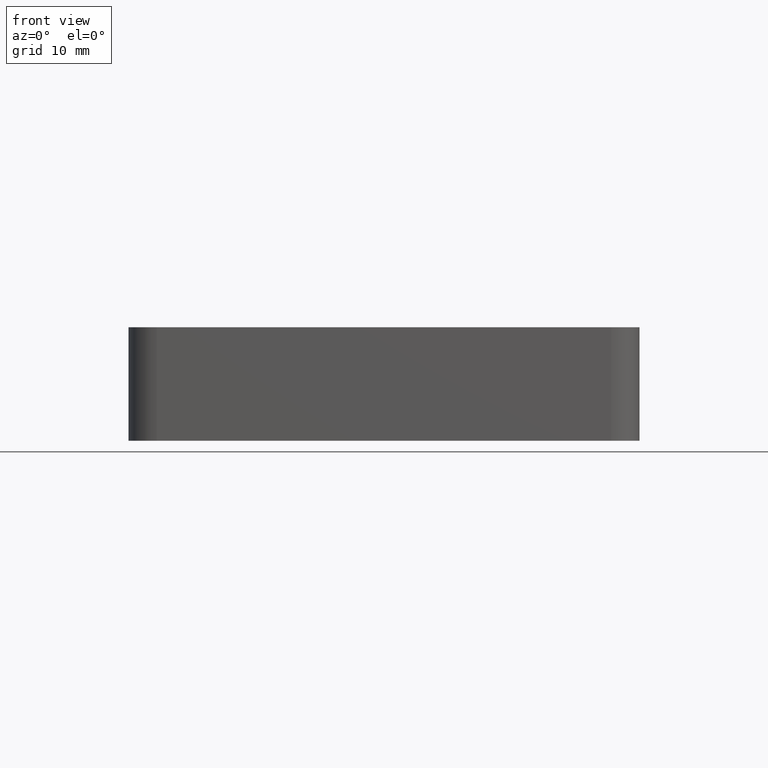
[diagram: clean part render]
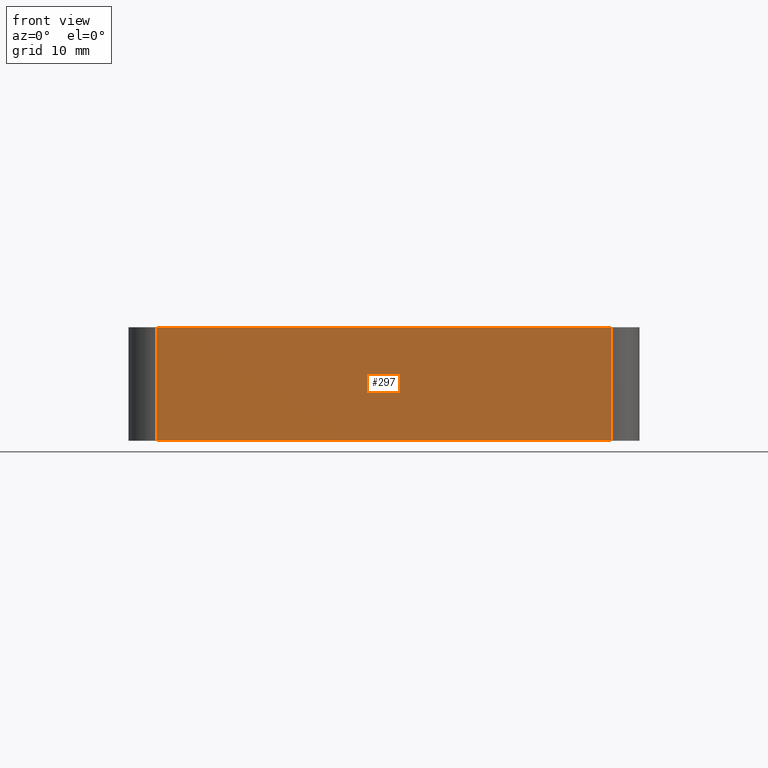
[diagram: same view with one face highlighted and labeled with its STEP entity id]
A machine part, front view. The second image highlights one B-rep face of the part: STEP entity #297.
In plain terms, the highlighted planar face has unit normal (0, 1, 0).
Its self-contained STEP definition (entity closure, byte-faithful):
#33=PLANE('',#326);
#46=FACE_OUTER_BOUND('',#65,.T.);
#65=EDGE_LOOP('',(#236,#237,#238,#239));
#112=LINE('',#450,#128);
#125=LINE('',#490,#141);
#126=LINE('',#493,#142);
#127=LINE('',#494,#143);
#128=VECTOR('',#354,10.);
#141=VECTOR('',#393,10.);
#142=VECTOR('',#398,39.9999999998399);
#143=VECTOR('',#399,39.9999999998399);
#144=VERTEX_POINT('',#448);
#145=VERTEX_POINT('',#449);
#158=VERTEX_POINT('',#487);
#159=VERTEX_POINT('',#489);
#172=EDGE_CURVE('',#144,#145,#112,.T.);
#192=EDGE_CURVE('',#159,#158,#125,.T.);
#194=EDGE_CURVE('',#158,#145,#126,.T.);
#195=EDGE_CURVE('',#159,#144,#127,.T.);
#236=ORIENTED_EDGE('',*,*,#192,.T.);
#237=ORIENTED_EDGE('',*,*,#194,.T.);
#238=ORIENTED_EDGE('',*,*,#172,.F.);
#239=ORIENTED_EDGE('',*,*,#195,.F.);
#297=ADVANCED_FACE('',(#46),#33,.F.);
#326=AXIS2_PLACEMENT_3D('',#492,#396,#397);
#354=DIRECTION('',(0.,0.,-1.));
#393=DIRECTION('',(0.,0.,-1.));
#396=DIRECTION('center_axis',(0.,1.,0.));
#397=DIRECTION('ref_axis',(0.,0.,1.));
#398=DIRECTION('',(1.,0.,0.));
#399=DIRECTION('',(1.,0.,0.));
#448=CARTESIAN_POINT('',(19.99999999992,-22.49999999991,0.));
#449=CARTESIAN_POINT('',(19.99999999992,-22.49999999991,-10.));
#450=CARTESIAN_POINT('',(19.99999999992,-22.49999999991,0.));
#487=CARTESIAN_POINT('',(-19.99999999992,-22.49999999991,-10.));
#489=CARTESIAN_POINT('',(-19.99999999992,-22.49999999991,0.));
#490=CARTESIAN_POINT('',(-19.99999999992,-22.49999999991,0.));
#492=CARTESIAN_POINT('Origin',(-19.99999999992,-22.49999999991,0.));
#493=CARTESIAN_POINT('',(-19.99999999992,-22.49999999991,-10.));
#494=CARTESIAN_POINT('',(-19.99999999992,-22.49999999991,0.));